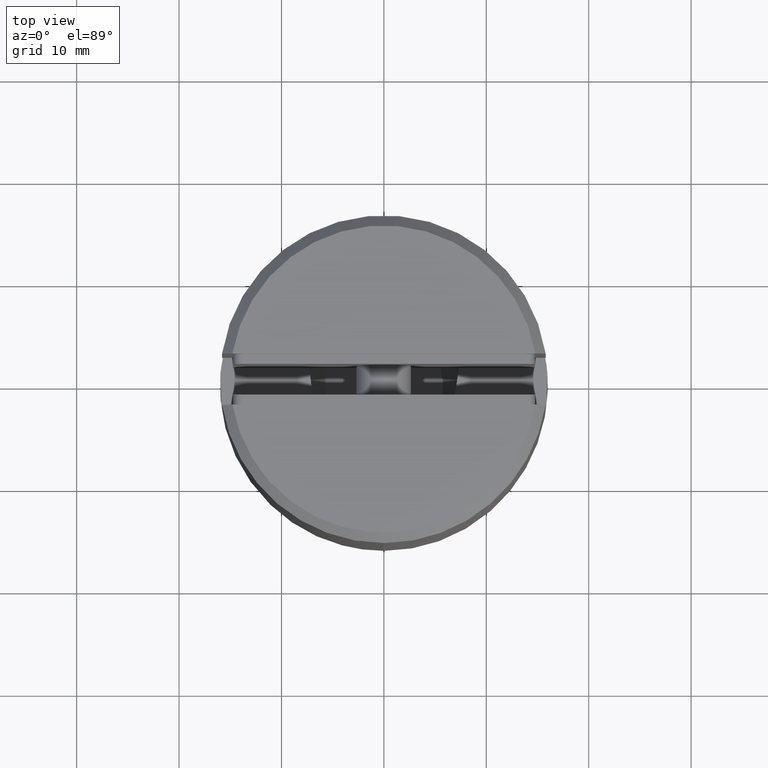
[diagram: clean part render]
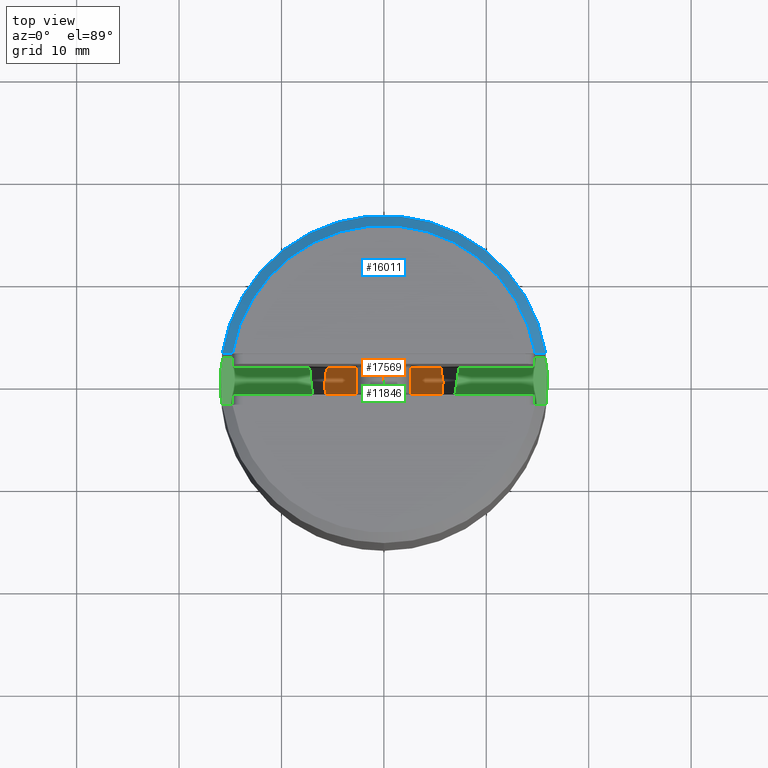
[diagram: same view with three faces highlighted in distinct colors, each labeled with its STEP entity id]
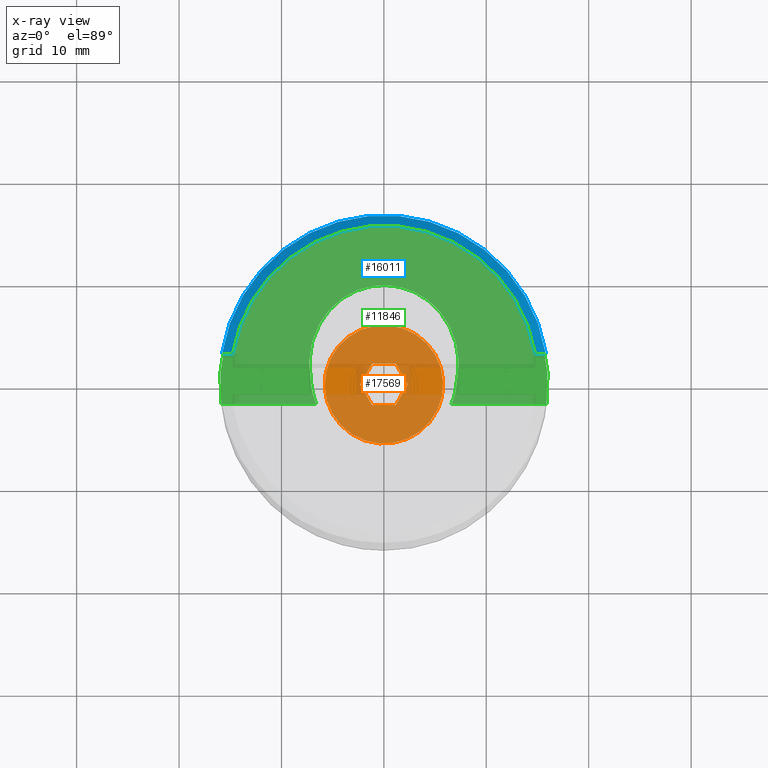
[diagram: x-ray of the same camera — body ghosted, the three highlighted faces saturated]
A machine part, top view with three faces highlighted in distinct colors.
The next image is the same camera in x-ray (body ghosted, the three faces saturated) — at least one of them is partly hidden behind the body in this view.
Their STEP definitions:

[orange] entity #17569 — the highlighted planar face has unit normal (-0, 0, 1).
#190 = FACE_BOUND ( 'NONE', #12161, .T. ) ;
#400 = CARTESIAN_POINT ( 'NONE',  ( 0.000000000000000000, 1.160474041071148932, 2.009999999999999787 ) ) ;
#1359 = CARTESIAN_POINT ( 'NONE',  ( 0.000000000000000000, 2.320948082142297419, -3.233603273357850147E-17 ) ) ;
#1867 = EDGE_CURVE ( 'NONE', #6546, #15881, #4819, .T. ) ;
#2454 = VECTOR ( 'NONE', #3342, 1000.000000000000227 ) ;
#3342 = DIRECTION ( 'NONE',  ( 0.000000000000000000, 0.5000000000000001110, -0.8660254037844384856 ) ) ;
#3699 = ORIENTED_EDGE ( 'NONE', *, *, #7548, .T. ) ;
#3913 = EDGE_CURVE ( 'NONE', #16311, #16311, #10441, .T. ) ;
#3992 = CARTESIAN_POINT ( 'NONE',  ( 0.000000000000000000, 0.000000000000000000, 0.000000000000000000 ) ) ;
#3999 = EDGE_CURVE ( 'NONE', #15464, #6546, #18174, .T. ) ;
#4011 = AXIS2_PLACEMENT_3D ( 'NONE', #9247, #10781, #18336 ) ;
#4184 = ORIENTED_EDGE ( 'NONE', *, *, #3913, .T. ) ;
#4191 = DIRECTION ( 'NONE',  ( -1.000000000000000000, -0.000000000000000000, -0.000000000000000000 ) ) ;
#4387 = CARTESIAN_POINT ( 'NONE',  ( 0.000000000000000000, -1.160474041071146267, 2.009999999999999343 ) ) ;
#4819 = LINE ( 'NONE', #14214, #11057 ) ;
#4965 = CARTESIAN_POINT ( 'NONE',  ( -0.000000000000000000, -2.320948082142294311, -7.831955557000869341E-18 ) ) ;
#5005 = DIRECTION ( 'NONE',  ( 0.000000000000000000, -0.5000000000000003331, 0.8660254037844383745 ) ) ;
#5207 = EDGE_CURVE ( 'NONE', #18709, #5654, #9267, .T. ) ;
#5494 = DIRECTION ( 'NONE',  ( 0.000000000000000000, -1.000000000000000000, -1.868550495941740542E-16 ) ) ;
#5654 = VERTEX_POINT ( 'NONE', #10886 ) ;
#6135 = PLANE ( 'NONE',  #4011 ) ;
#6546 = VERTEX_POINT ( 'NONE', #1359 ) ;
#6595 = CARTESIAN_POINT ( 'NONE',  ( -0.000000000000000000, -1.160474041071146267, -2.009999999999999787 ) ) ;
#6653 = CARTESIAN_POINT ( 'NONE',  ( 0.000000000000000000, 0.000000000000000000, 5.785000000000000142 ) ) ;
#7168 = VECTOR ( 'NONE', #17303, 1000.000000000000000 ) ;
#7467 = DIRECTION ( 'NONE',  ( -0.000000000000000000, -0.5000000000000002220, -0.8660254037844384856 ) ) ;
#7548 = EDGE_CURVE ( 'NONE', #5654, #8412, #8469, .T. ) ;
#8195 = CARTESIAN_POINT ( 'NONE',  ( -0.000000000000000000, -1.160474041071146267, -2.009999999999999787 ) ) ;
#8412 = VERTEX_POINT ( 'NONE', #6595 ) ;
#8469 = LINE ( 'NONE', #4965, #2454 ) ;
#8660 = CARTESIAN_POINT ( 'NONE',  ( 0.000000000000000000, 1.160474041071148932, 2.009999999999999787 ) ) ;
#9247 = CARTESIAN_POINT ( 'NONE',  ( 0.000000000000000000, 0.000000000000000000, 0.000000000000000000 ) ) ;
#9267 = LINE ( 'NONE', #4387, #18665 ) ;
#9509 = VECTOR ( 'NONE', #5494, 1000.000000000000000 ) ;
#9959 = VECTOR ( 'NONE', #13659, 1000.000000000000227 ) ;
#10441 = CIRCLE ( 'NONE', #17088, 5.785000000000000142 ) ;
#10781 = DIRECTION ( 'NONE',  ( -1.000000000000000000, 0.000000000000000000, -0.000000000000000000 ) ) ;
#10877 = ORIENTED_EDGE ( 'NONE', *, *, #11799, .T. ) ;
#10886 = CARTESIAN_POINT ( 'NONE',  ( 0.000000000000000000, -2.320948082142294311, 2.168404344971008868E-16 ) ) ;
#11057 = VECTOR ( 'NONE', #5005, 1000.000000000000227 ) ;
#11799 = EDGE_CURVE ( 'NONE', #15881, #18709, #11908, .T. ) ;
#11908 = LINE ( 'NONE', #8660, #9509 ) ;
#12109 = CARTESIAN_POINT ( 'NONE',  ( 0.000000000000000000, 1.160474041071148932, -2.009999999999999787 ) ) ;
#12161 = EDGE_LOOP ( 'NONE', ( #19673, #3699, #17256, #14711, #19068, #10877 ) ) ;
#13501 = EDGE_LOOP ( 'NONE', ( #4184 ) ) ;
#13659 = DIRECTION ( 'NONE',  ( 0.000000000000000000, 0.5000000000000003331, 0.8660254037844383745 ) ) ;
#14214 = CARTESIAN_POINT ( 'NONE',  ( 0.000000000000000000, 2.320948082142297419, -3.233603273357850147E-17 ) ) ;
#14660 = LINE ( 'NONE', #8195, #7168 ) ;
#14711 = ORIENTED_EDGE ( 'NONE', *, *, #3999, .T. ) ;
#14921 = FACE_OUTER_BOUND ( 'NONE', #13501, .T. ) ;
#15464 = VERTEX_POINT ( 'NONE', #16095 ) ;
#15881 = VERTEX_POINT ( 'NONE', #400 ) ;
#16095 = CARTESIAN_POINT ( 'NONE',  ( 0.000000000000000000, 1.160474041071148932, -2.009999999999999787 ) ) ;
#16311 = VERTEX_POINT ( 'NONE', #6653 ) ;
#17088 = AXIS2_PLACEMENT_3D ( 'NONE', #3992, #4191, #19484 ) ;
#17256 = ORIENTED_EDGE ( 'NONE', *, *, #17983, .T. ) ;
#17303 = DIRECTION ( 'NONE',  ( 0.000000000000000000, 1.000000000000000000, 0.000000000000000000 ) ) ;
#17569 = ADVANCED_FACE ( 'NONE', ( #14921, #190 ), #6135, .T. ) ;
#17983 = EDGE_CURVE ( 'NONE', #8412, #15464, #14660, .T. ) ;
#18174 = LINE ( 'NONE', #12109, #9959 ) ;
#18336 = DIRECTION ( 'NONE',  ( -0.000000000000000000, 0.000000000000000000, 1.000000000000000000 ) ) ;
#18665 = VECTOR ( 'NONE', #7467, 1000.000000000000114 ) ;
#18709 = VERTEX_POINT ( 'NONE', #19072 ) ;
#19068 = ORIENTED_EDGE ( 'NONE', *, *, #1867, .T. ) ;
#19072 = CARTESIAN_POINT ( 'NONE',  ( 0.000000000000000000, -1.160474041071146267, 2.009999999999999343 ) ) ;
#19484 = DIRECTION ( 'NONE',  ( 0.000000000000000000, 0.000000000000000000, 1.000000000000000000 ) ) ;
#19673 = ORIENTED_EDGE ( 'NONE', *, *, #5207, .T. ) ;

[blue] entity #16011 — the highlighted conical surface has half-angle 45 deg.
#50 = DIRECTION ( 'NONE',  ( 0.000000000000000000, 0.000000000000000000, -1.000000000000000000 ) ) ;
#308 = CARTESIAN_POINT ( 'NONE',  ( 14.79019945774903633, 2.500000000000000444, 25.00000000000000000 ) ) ;
#1001 = CARTESIAN_POINT ( 'NONE',  ( -14.79019945774903455, 2.500000000000000444, 25.00000000000000000 ) ) ;
#1406 = CARTESIAN_POINT ( 'NONE',  ( 0.000000000000000000, 0.000000000000000000, 25.00000000000000000 ) ) ;
#1610 = ORIENTED_EDGE ( 'NONE', *, *, #2905, .F. ) ;
#1880 = EDGE_CURVE ( 'NONE', #15939, #13083, #3843, .T. ) ;
#2229 = DIRECTION ( 'NONE',  ( 1.000000000000000000, 0.000000000000000000, 0.000000000000000000 ) ) ;
#2905 = EDGE_CURVE ( 'NONE', #13083, #4490, #4897, .T. ) ;
#3392 = ORIENTED_EDGE ( 'NONE', *, *, #4214, .F. ) ;
#3843 = CIRCLE ( 'NONE', #10257, 16.00000000000000000 ) ;
#4121 = ORIENTED_EDGE ( 'NONE', *, *, #5455, .F. ) ;
#4214 = EDGE_CURVE ( 'NONE', #4490, #16929, #15283, .T. ) ;
#4490 = VERTEX_POINT ( 'NONE', #14738 ) ;
#4897 = B_SPLINE_CURVE_WITH_KNOTS ( 'NONE', 3,
 ( #7930, #6519, #14057, #308 ),
 .UNSPECIFIED., .F., .F.,
 ( 4, 4 ),
 ( 0.000000000000000000, 0.001423635744345223830 ),
 .UNSPECIFIED. ) ;
#5187 = CARTESIAN_POINT ( 'NONE',  ( 0.000000000000000000, 0.000000000000000000, 23.99999999999998934 ) ) ;
#5455 = EDGE_CURVE ( 'NONE', #16929, #15939, #15132, .T. ) ;
#5511 = ORIENTED_EDGE ( 'NONE', *, *, #1880, .F. ) ;
#6467 = DIRECTION ( 'NONE',  ( 1.000000000000000000, 0.000000000000000000, 0.000000000000000000 ) ) ;
#6519 = CARTESIAN_POINT ( 'NONE',  ( 15.46585946293022218, 2.500000000000000444, 24.33347434765182271 ) ) ;
#6985 = EDGE_LOOP ( 'NONE', ( #1610, #5511, #4121, #3392 ) ) ;
#7930 = CARTESIAN_POINT ( 'NONE',  ( 15.80348062927910924, 2.500000000000000444, 23.99999999999998934 ) ) ;
#8007 = CARTESIAN_POINT ( 'NONE',  ( 0.000000000000000000, 0.000000000000000000, 25.00000000000000000 ) ) ;
#8466 = CARTESIAN_POINT ( 'NONE',  ( -15.80348062927910924, 2.500000000000000444, 23.99999999999998934 ) ) ;
#9377 = CARTESIAN_POINT ( 'NONE',  ( 15.80348062927910924, 2.500000000000000444, 23.99999999999998934 ) ) ;
#10257 = AXIS2_PLACEMENT_3D ( 'NONE', #5187, #14410, #2229 ) ;
#11635 = CARTESIAN_POINT ( 'NONE',  ( -15.46585946293021863, 2.500000000000000444, 24.33347434765182271 ) ) ;
#12843 = DIRECTION ( 'NONE',  ( 0.000000000000000000, 0.000000000000000000, 1.000000000000000000 ) ) ;
#13083 = VERTEX_POINT ( 'NONE', #9377 ) ;
#13651 = CARTESIAN_POINT ( 'NONE',  ( -14.79019945774903455, 2.500000000000000444, 25.00000000000000000 ) ) ;
#14057 = CARTESIAN_POINT ( 'NONE',  ( 15.12810841561664787, 2.500000000000000444, 24.66681727430519544 ) ) ;
#14410 = DIRECTION ( 'NONE',  ( 0.000000000000000000, 0.000000000000000000, -1.000000000000000000 ) ) ;
#14680 = CONICAL_SURFACE ( 'NONE', #15507, 14.99999999999999645, 0.7853981633974447263 ) ;
#14738 = CARTESIAN_POINT ( 'NONE',  ( 14.79019945774903633, 2.500000000000000444, 25.00000000000000000 ) ) ;
#15132 = B_SPLINE_CURVE_WITH_KNOTS ( 'NONE', 3,
 ( #1001, #16435, #11635, #8466 ),
 .UNSPECIFIED., .F., .F.,
 ( 4, 4 ),
 ( 0.000000000000000000, 0.001423635744345227083 ),
 .UNSPECIFIED. ) ;
#15283 = CIRCLE ( 'NONE', #16443, 14.99999999999999645 ) ;
#15507 = AXIS2_PLACEMENT_3D ( 'NONE', #1406, #50, #19948 ) ;
#15939 = VERTEX_POINT ( 'NONE', #16572 ) ;
#16011 = ADVANCED_FACE ( 'NONE', ( #17818 ), #14680, .T. ) ;
#16435 = CARTESIAN_POINT ( 'NONE',  ( -15.12810841561664610, 2.500000000000000444, 24.66681727430519544 ) ) ;
#16443 = AXIS2_PLACEMENT_3D ( 'NONE', #8007, #12843, #6467 ) ;
#16572 = CARTESIAN_POINT ( 'NONE',  ( -15.80348062927910924, 2.500000000000000444, 23.99999999999998934 ) ) ;
#16929 = VERTEX_POINT ( 'NONE', #13651 ) ;
#17818 = FACE_OUTER_BOUND ( 'NONE', #6985, .T. ) ;
#19948 = DIRECTION ( 'NONE',  ( -1.000000000000000000, 0.000000000000000000, 0.000000000000000000 ) ) ;

[green] entity #11846 — the highlighted planar face has unit normal (0, -0, -1).
#170 = EDGE_CURVE ( 'NONE', #12157, #11212, #17836, .T. ) ;
#1049 = DIRECTION ( 'NONE',  ( 0.000000000000000000, -1.917242093807535139E-17, -1.000000000000000000 ) ) ;
#1632 = VECTOR ( 'NONE', #5919, 1000.000000000000000 ) ;
#2134 = CARTESIAN_POINT ( 'NONE',  ( -8.209505265282327713, 5.457934394450707494, 14.99999999999999822 ) ) ;
#2205 = CARTESIAN_POINT ( 'NONE',  ( -5.045696227753917462, 9.614984130205108670, 14.99999999999999822 ) ) ;
#2358 = CARTESIAN_POINT ( 'NONE',  ( 7.131423088841220448, 0.2447344990263577713, 15.00000000000000000 ) ) ;
#2962 = CARTESIAN_POINT ( 'NONE',  ( 6.613270099401566071, -2.000000000000001332, 15.00000000000000000 ) ) ;
#3194 = VERTEX_POINT ( 'NONE', #13819 ) ;
#3632 = VERTEX_POINT ( 'NONE', #2358 ) ;
#3743 = CARTESIAN_POINT ( 'NONE',  ( 5.045696227753969865, 9.614984130205071367, 14.99999999999999822 ) ) ;
#4117 = ORIENTED_EDGE ( 'NONE', *, *, #16798, .T. ) ;
#4375 = CARTESIAN_POINT ( 'NONE',  ( 6.902441179652769598, -1.283012801296430583, 15.00000000000000000 ) ) ;
#5154 = CARTESIAN_POINT ( 'NONE',  ( -7.131423088841227553, 0.2447344990264114784, 15.00000000000000000 ) ) ;
#5292 = CARTESIAN_POINT ( 'NONE',  ( 7.131423088841220448, 0.2447344990263577713, 15.00000000000000000 ) ) ;
#5635 = PLANE ( 'NONE',  #8723 ) ;
#5919 = DIRECTION ( 'NONE',  ( 1.000000000000000000, -0.000000000000000000, -0.000000000000000000 ) ) ;
#6123 = ORIENTED_EDGE ( 'NONE', *, *, #12451, .T. ) ;
#6745 = ORIENTED_EDGE ( 'NONE', *, *, #170, .T. ) ;
#6830 = CARTESIAN_POINT ( 'NONE',  ( -6.613270099401565183, -2.000000000000004885, 15.00000000000000000 ) ) ;
#7055 = DIRECTION ( 'NONE',  ( -0.000000000000000000, 1.917242093807535139E-17, 1.000000000000000000 ) ) ;
#7074 = CARTESIAN_POINT ( 'NONE',  ( -6.613270099401565183, -2.000000000000004885, 15.00000000000000000 ) ) ;
#7289 = VERTEX_POINT ( 'NONE', #9998 ) ;
#7322 = CARTESIAN_POINT ( 'NONE',  ( 7.131423088841220448, 0.2447344990263577713, 15.00000000000000000 ) ) ;
#7520 = CARTESIAN_POINT ( 'NONE',  ( 7.076622069001389903, -0.5284290019927397886, 15.00000000000000000 ) ) ;
#7605 = DIRECTION ( 'NONE',  ( 1.000000000000000000, -0.000000000000000000, -0.000000000000000000 ) ) ;
#8254 = CARTESIAN_POINT ( 'NONE',  ( -7.076622069001397008, -0.5284290019927083693, 15.00000000000000000 ) ) ;
#8275 = VERTEX_POINT ( 'NONE', #12503 ) ;
#8723 = AXIS2_PLACEMENT_3D ( 'NONE', #11944, #1049, #18089 ) ;
#9208 = EDGE_LOOP ( 'NONE', ( #4117, #14572, #6745, #6123, #14026, #16937 ) ) ;
#9563 = LINE ( 'NONE', #10638, #12920 ) ;
#9738 = CARTESIAN_POINT ( 'NONE',  ( 8.209505265282350805, 5.457934394450649762, 14.99999999999999822 ) ) ;
#9794 = CARTESIAN_POINT ( 'NONE',  ( -7.131423088841227553, 0.2447344990264114784, 15.00000000000000000 ) ) ;
#9998 = CARTESIAN_POINT ( 'NONE',  ( -15.87450786638754430, -2.000000000000001332, 15.00000000000000000 ) ) ;
#10638 = CARTESIAN_POINT ( 'NONE',  ( -6.389628886300967814, -2.000000000000001332, 15.00000000000000000 ) ) ;
#11212 = VERTEX_POINT ( 'NONE', #5154 ) ;
#11306 = CIRCLE ( 'NONE', #13398, 16.00000000000000000 ) ;
#11410 = CARTESIAN_POINT ( 'NONE',  ( -7.131423088841227553, 0.2447344990264114784, 15.00000000000000000 ) ) ;
#11846 = ADVANCED_FACE ( 'NONE', ( #16513 ), #5635, .F. ) ;
#11944 = CARTESIAN_POINT ( 'NONE',  ( 0.000000000000000000, -2.940653797014001276E-33, 15.00000000000000000 ) ) ;
#12157 = VERTEX_POINT ( 'NONE', #7074 ) ;
#12451 = EDGE_CURVE ( 'NONE', #11212, #3632, #14869, .T. ) ;
#12503 = CARTESIAN_POINT ( 'NONE',  ( 6.613270099401566071, -2.000000000000001332, 15.00000000000000000 ) ) ;
#12920 = VECTOR ( 'NONE', #7605, 1000.000000000000000 ) ;
#13398 = AXIS2_PLACEMENT_3D ( 'NONE', #16237, #7055, #19274 ) ;
#13616 =( BOUNDED_CURVE ( )  B_SPLINE_CURVE ( 3, ( #7322, #7520, #4375, #2962 ),
 .UNSPECIFIED., .F., .T. ) 
 B_SPLINE_CURVE_WITH_KNOTS ( ( 4, 4 ),
 ( 1.642897578568961237, 1.960733665775459711 ),
 .UNSPECIFIED. ) 
 CURVE ( )  GEOMETRIC_REPRESENTATION_ITEM ( )  RATIONAL_B_SPLINE_CURVE ( ( 1.000000000000000000, 0.9915993872373701778, 0.9915993872373701778, 1.000000000000000000 ) ) 
 REPRESENTATION_ITEM ( '' )  );
#13819 = CARTESIAN_POINT ( 'NONE',  ( 15.87450786638754430, -2.000000000000001332, 15.00000000000000000 ) ) ;
#14026 = ORIENTED_EDGE ( 'NONE', *, *, #16988, .T. ) ;
#14572 = ORIENTED_EDGE ( 'NONE', *, *, #19800, .T. ) ;
#14869 =( BOUNDED_CURVE ( )  B_SPLINE_CURVE ( 3, ( #11410, #2134, #2205, #19041, #3743, #9738, #5292 ),
 .UNSPECIFIED., .F., .F. ) 
 B_SPLINE_CURVE_WITH_KNOTS ( ( 4, 3, 4 ),
 ( 4.497065233503045434, 6.283185307179589785, 8.069305380856134136 ),
 .UNSPECIFIED. ) 
 CURVE ( )  GEOMETRIC_REPRESENTATION_ITEM ( )  RATIONAL_B_SPLINE_CURVE ( ( 1.000000000000000000, 0.7513541435075969943, 0.7513541435075969943, 1.000000000000000000, 0.7513541435075969943, 0.7513541435075969943, 1.000000000000000000 ) ) 
 REPRESENTATION_ITEM ( '' )  );
#15367 = CARTESIAN_POINT ( 'NONE',  ( 15.80348062927910568, -2.000000000000001332, 15.00000000000000000 ) ) ;
#16237 = CARTESIAN_POINT ( 'NONE',  ( 0.000000000000000000, -5.881307594028002552E-33, 15.00000000000000000 ) ) ;
#16513 = FACE_OUTER_BOUND ( 'NONE', #9208, .T. ) ;
#16798 = EDGE_CURVE ( 'NONE', #3194, #7289, #11306, .T. ) ;
#16937 = ORIENTED_EDGE ( 'NONE', *, *, #17864, .T. ) ;
#16988 = EDGE_CURVE ( 'NONE', #3632, #8275, #13616, .T. ) ;
#17491 = CARTESIAN_POINT ( 'NONE',  ( -6.902441179652776704, -1.283012801296417482, 15.00000000000000000 ) ) ;
#17836 =( BOUNDED_CURVE ( )  B_SPLINE_CURVE ( 3, ( #6830, #17491, #8254, #9794 ),
 .UNSPECIFIED., .F., .F. ) 
 B_SPLINE_CURVE_WITH_KNOTS ( ( 4, 4 ),
 ( 4.322451641404126299, 4.640287728610632101 ),
 .UNSPECIFIED. ) 
 CURVE ( )  GEOMETRIC_REPRESENTATION_ITEM ( )  RATIONAL_B_SPLINE_CURVE ( ( 1.000000000000000000, 0.9915993872373697338, 0.9915993872373697338, 1.000000000000000000 ) ) 
 REPRESENTATION_ITEM ( '' )  );
#17864 = EDGE_CURVE ( 'NONE', #8275, #3194, #19000, .T. ) ;
#18089 = DIRECTION ( 'NONE',  ( 0.000000000000000000, 1.000000000000000000, -1.917242093807535139E-17 ) ) ;
#19000 = LINE ( 'NONE', #15367, #1632 ) ;
#19041 = CARTESIAN_POINT ( 'NONE',  ( 2.593480985524365931E-14, 9.614984130205089130, 15.00000000000000000 ) ) ;
#19274 = DIRECTION ( 'NONE',  ( 0.000000000000000000, -1.000000000000000000, 0.000000000000000000 ) ) ;
#19800 = EDGE_CURVE ( 'NONE', #7289, #12157, #9563, .T. ) ;